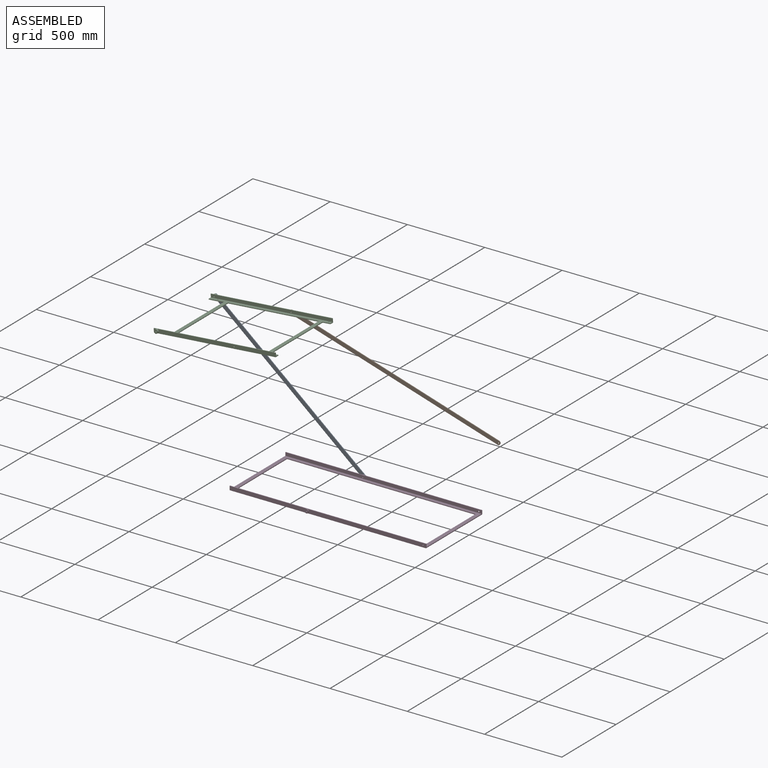
[diagram: assembled view]
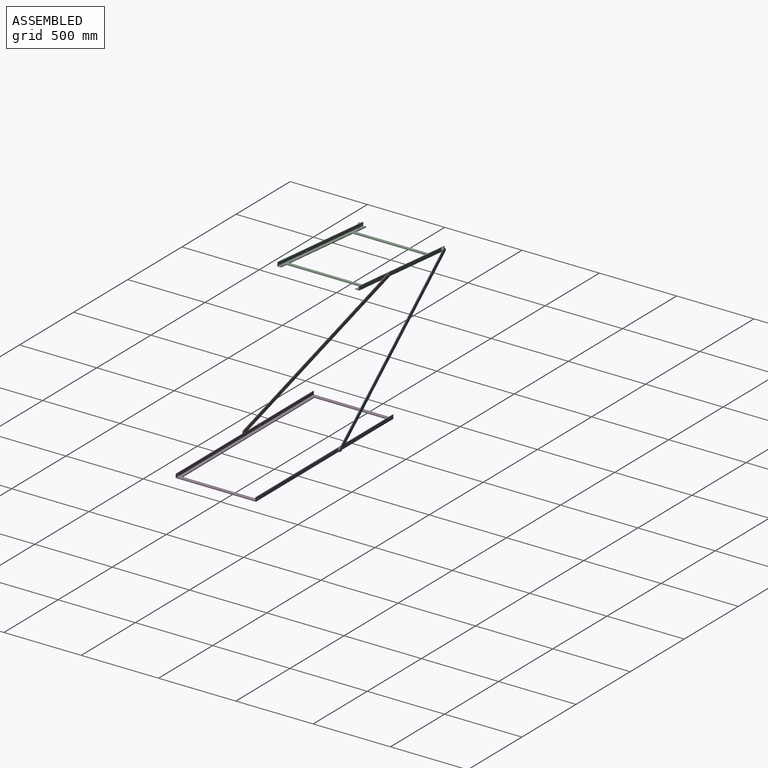
[diagram: assembled view, second angle]
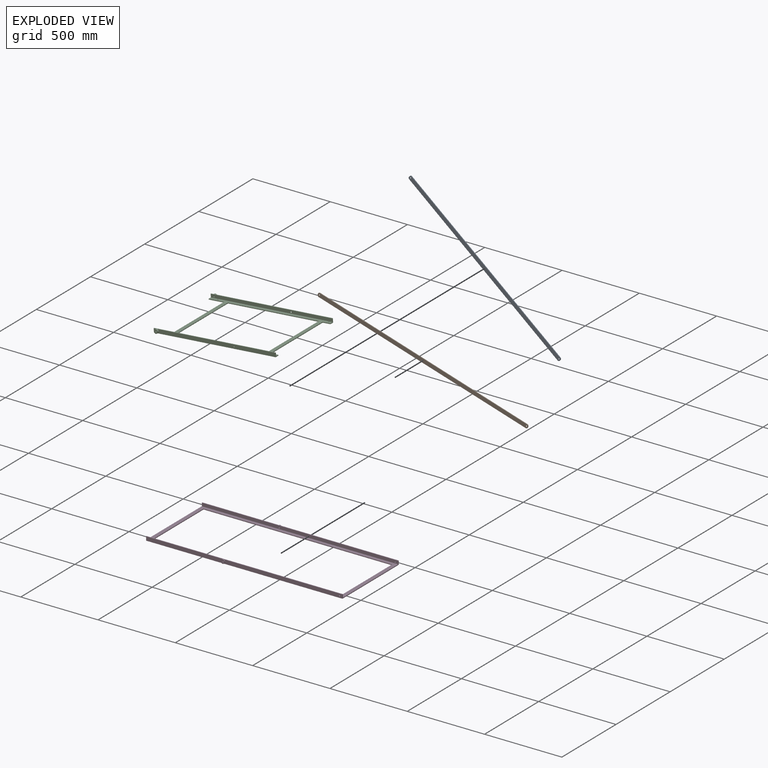
[diagram: exploded view]
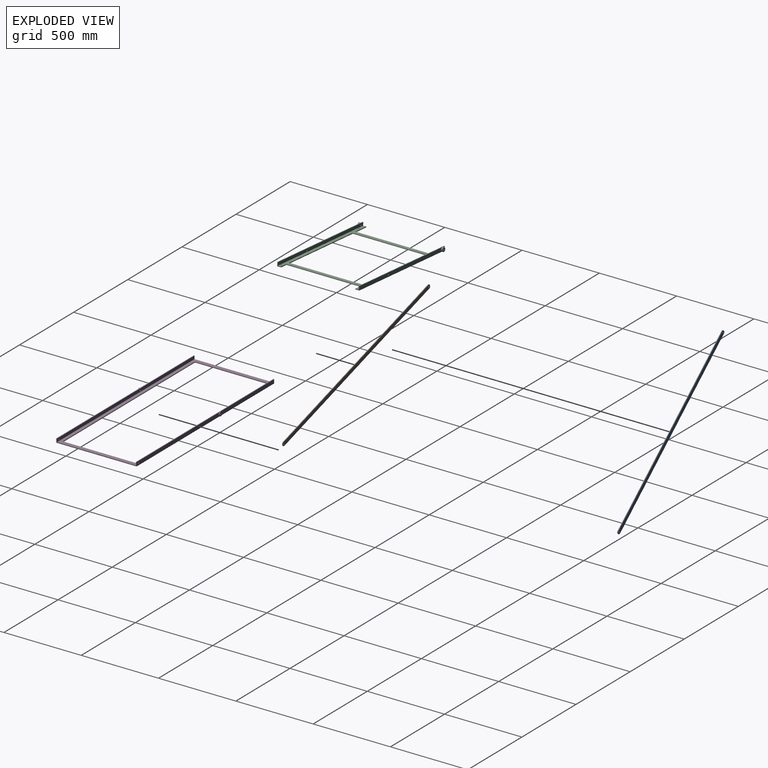
[diagram: exploded view, second angle]
ASSEMBLY  parts=4 mates=3
PART A: 12 faces, bbox 4.8x25.4x1270 mm
  f0: plane 5.4x4.76mm, normal (0,0,1), area 25.7mm2, adj f1,f9,f10,f11
  f1: cylinder r=10mm len=10mm, axis (-1,0,0), area 74.8mm2, adj f0,f2,f10,f11
  f2: plane 1250x4.76mm, normal (0,-1,0), area 5953.1mm2, adj f1,f3,f10,f11
  f3: cylinder r=10mm len=10mm, axis (-1,0,0), area 74.8mm2, adj f2,f4,f10,f11
  f4: plane 5.4x4.76mm, normal (0,0,-1), area 25.7mm2, adj f3,f5,f10,f11
  f5: cylinder r=10mm len=10mm, axis (-1,0,0), area 74.8mm2, adj f4,f6,f10,f11
  f6: plane 1250x4.76mm, normal (0,1,0), area 5953.1mm2, adj f5,f9,f10,f11
  f7: cylinder r=4mm len=8mm, axis (-1,0,0), area 119.7mm2, adj f10,f11
  f8: cylinder r=4mm len=8mm, axis (-1,0,0), area 119.7mm2, adj f10,f11
  f9: cylinder r=10mm len=10mm, axis (-1,0,0), area 74.8mm2, adj f0,f6,f10,f11
  f10: plane 1270x25.4mm, normal (1,0,0), area 32071.6mm2, adj f0,f1,f2,f3,f4,f5,f6,f7
  f11: plane 1270x25.4mm, normal (-1,0,0), area 32071.6mm2, adj f0,f1,f2,f3,f4,f5,f6,f7
PART B: 12 faces, bbox 25.4x4.8x1420 mm
  f0: plane 5.4x4.76mm, normal (0,0,1), area 25.7mm2, adj f1,f9,f10,f11
  f1: cylinder r=10mm len=10mm, axis (0,1,0), area 74.8mm2, adj f0,f2,f10,f11
  f2: plane 1400x4.76mm, normal (-1,0,0), area 6667.5mm2, adj f1,f3,f10,f11
  f3: cylinder r=10mm len=10mm, axis (0,1,0), area 74.8mm2, adj f2,f4,f10,f11
  f4: plane 5.4x4.76mm, normal (0,0,-1), area 25.7mm2, adj f3,f5,f10,f11
  f5: cylinder r=10mm len=10mm, axis (0,1,0), area 74.8mm2, adj f4,f6,f10,f11
  f6: plane 1400x4.76mm, normal (1,0,0), area 6667.5mm2, adj f5,f9,f10,f11
  f7: cylinder r=4mm len=8mm, axis (0,1,0), area 119.7mm2, adj f10,f11
  f8: cylinder r=4mm len=8mm, axis (0,1,0), area 119.7mm2, adj f10,f11
  f9: cylinder r=10mm len=10mm, axis (0,1,0), area 74.8mm2, adj f0,f6,f10,f11
  f10: plane 1420x25.4mm, normal (0,-1,0), area 35881.6mm2, adj f0,f1,f2,f3,f4,f5,f6,f7
  f11: plane 1420x25.4mm, normal (0,1,0), area 35881.6mm2, adj f0,f1,f2,f3,f4,f5,f6,f7
PART C: 36 faces, bbox 550.8x790x25.4 mm
  f0: plane 770x25.4mm, normal (-1,0,0), area 19254.4mm2, adj f6,f17,f21,f30,f34
  f1: plane 770x25.4mm, normal (1,0,0), area 19254.4mm2, adj f4,f6,f11,f28,f35
  f2: plane 100x4.76mm, normal (-1,0,0), area 476.3mm2, adj f6,f8,f10,f24
  f3: plane 50x4.76mm, normal (-1,0,0), area 238.1mm2, adj f6,f8,f11,f27
  f4: plane 790x4.76mm, normal (0,0,-1), area 3762.4mm2, adj f1,f5,f9,f10,f11
  f5: plane 25.4x20mm, normal (1,0,0), area 254.6mm2, adj f4,f6,f10,f28
  f6: plane 790x530.8mm, normal (0,0,1), area 64314.9mm2, adj f0,f1,f2,f3,f5,f7,f10,f11
  f7: plane 589.2x4.76mm, normal (-1,0,0), area 2806.1mm2, adj f6,f8,f25,f26
  f8: plane 790x521.28mm, normal (0,0,-1), area 56790.2mm2, adj f2,f3,f7,f9,f10,f11,f12,f13
  f9: plane 790x20.64mm, normal (-1,0,0), area 16203.1mm2, adj f4,f8,f10,f11,f33,f35
  f10: plane 25.4x25.4mm, normal (0,-1,0), area 219.3mm2, adj f2,f4,f5,f6,f8,f9
  f11: plane 25.4x25.4mm, normal (0,1,0), area 219.3mm2, adj f1,f3,f4,f6,f8,f9
  f12: cylinder r=4mm len=8mm, axis (0,0,1), area 119.7mm2, adj f6,f8
  f13: cylinder r=4mm len=8mm, axis (0,0,1), area 119.7mm2, adj f6,f8
  f14: plane 589.2x4.76mm, normal (1,0,0), area 2806.1mm2, adj f6,f8,f25,f26
  f15: plane 50x4.76mm, normal (1,0,0), area 238.1mm2, adj f6,f8,f21,f27
  f16: plane 25.4x20mm, normal (-1,0,0), area 254.6mm2, adj f6,f17,f20,f30
  f17: plane 790x4.76mm, normal (0,0,-1), area 3762.4mm2, adj f0,f16,f18,f20,f21
  f18: plane 790x20.64mm, normal (1,0,0), area 16203.1mm2, adj f8,f17,f20,f21,f32,f34
  f19: plane 100x4.76mm, normal (1,0,0), area 476.3mm2, adj f6,f8,f20,f24
  f20: plane 25.4x25.4mm, normal (0,-1,0), area 219.3mm2, adj f6,f8,f16,f17,f18,f19
  f21: plane 25.4x25.4mm, normal (0,1,0), area 219.3mm2, adj f0,f6,f8,f15,f17,f18
  f22: cylinder r=4mm len=8mm, axis (0,0,1), area 119.7mm2, adj f6,f8
  f23: cylinder r=4mm len=8mm, axis (0,0,1), area 119.7mm2, adj f6,f8
  f24: plane 480x4.76mm, normal (0,-1,0), area 2286mm2, adj f2,f6,f8,f19
  f25: plane 480x4.76mm, normal (0,1,0), area 2286mm2, adj f6,f7,f8,f14
  f26: plane 480x4.76mm, normal (0,-1,0), area 2286mm2, adj f6,f7,f8,f14
  f27: plane 480x4.76mm, normal (0,1,0), area 2286mm2, adj f3,f6,f8,f15
  f28: cylinder r=12.7mm len=25.4mm, axis (-1,0,0), area 798mm2, adj f1,f5,f29
  f29: plane 25.4x25.4mm, normal (1,0,0), area 456.4mm2, adj f28,f33
  f30: cylinder r=12.7mm len=25.4mm, axis (1,0,0), area 798mm2, adj f0,f16,f31
  f31: plane 25.4x25.4mm, normal (-1,0,0), area 456.4mm2, adj f30,f32
  f32: cylinder r=4mm len=14.76mm, axis (-1,0,0), area 371mm2, adj f18,f31
  f33: cylinder r=4mm len=14.76mm, axis (-1,0,0), area 371mm2, adj f9,f29
  f34: cylinder r=4mm len=8mm, axis (1,0,0), area 119.7mm2, adj f0,f18
  f35: cylinder r=4mm len=8mm, axis (1,0,0), area 119.7mm2, adj f1,f9
PART D: 30 faces, bbox 1270x529.5x25.4 mm
  f0: plane 1270x510mm, normal (0,0,1), area 76221.1mm2, adj f1,f4,f5,f9,f10,f11,f13,f14
  f1: plane 500x20.64mm, normal (0,1,0), area 10098.3mm2, adj f0,f11,f15,f27
  f2: plane 500x25.4mm, normal (0,-1,0), area 12446.6mm2, adj f6,f11,f15,f25
  f3: plane 770x25.4mm, normal (0,1,0), area 19254.4mm2, adj f6,f8,f10,f12,f22
  f4: plane 770x20.64mm, normal (0,-1,0), area 15620.1mm2, adj f0,f8,f10,f12,f21
  f5: plane 1219.2x4.76mm, normal (0,-1,0), area 5806.4mm2, adj f0,f6,f18,f19
  f6: plane 1270x519.53mm, normal (0,0,-1), area 88327.2mm2, adj f2,f3,f5,f7,f10,f11,f13,f16
  f7: plane 500x25.4mm, normal (0,1,0), area 12446.6mm2, adj f6,f8,f11,f22
  f8: plane 1270x4.76mm, normal (0,0,1), area 6048.4mm2, adj f3,f4,f7,f9,f10,f11
  f9: plane 500x20.64mm, normal (0,-1,0), area 10098.3mm2, adj f0,f8,f11,f21
  f10: plane 519.53x25.4mm, normal (1,0,0), area 2670.8mm2, adj f0,f3,f4,f6,f8,f14,f15,f16
  f11: plane 519.53x25.4mm, normal (-1,0,0), area 2670.8mm2, adj f0,f1,f2,f6,f7,f8,f9,f15
  f12: cylinder r=4mm len=8mm, axis (0,1,0), area 119.7mm2, adj f3,f4
  f13: plane 1219.2x4.76mm, normal (0,1,0), area 5806.4mm2, adj f0,f6,f18,f19
  f14: plane 770x20.64mm, normal (0,1,0), area 15620.1mm2, adj f0,f10,f15,f17,f27
  f15: plane 1270x4.76mm, normal (0,0,1), area 6048.4mm2, adj f1,f2,f10,f11,f14,f16
  f16: plane 770x25.4mm, normal (0,-1,0), area 19254.4mm2, adj f6,f10,f15,f17,f25
  f17: cylinder r=4mm len=8mm, axis (0,1,0), area 119.7mm2, adj f14,f16
  f18: plane 468.73x4.76mm, normal (1,0,0), area 2232.3mm2, adj f0,f5,f6,f13
  f19: plane 468.73x4.76mm, normal (-1,0,0), area 2232.3mm2, adj f0,f5,f6,f13
  f20: plane 25.4x20.64mm, normal (0,-1,0), area 390.7mm2, adj f0,f21,f29
  f21: cylinder r=12.7mm len=25.4mm, axis (0,1,0), area 13.5mm2, adj f0,f4,f9,f20
  f22: cylinder r=12.7mm len=25.4mm, axis (0,1,0), area 399mm2, adj f3,f7,f23
  f23: plane 25.4x25.4mm, normal (0,1,0), area 456.4mm2, adj f22,f29
  f24: plane 25.4x25.4mm, normal (0,-1,0), area 456.4mm2, adj f25,f26
  f25: cylinder r=12.7mm len=25.4mm, axis (0,1,0), area 399mm2, adj f2,f16,f24
  f26: cylinder r=4mm len=10mm, axis (0,1,0), area 251.3mm2, adj f24,f28
  f27: cylinder r=12.7mm len=25.4mm, axis (0,1,0), area 13.5mm2, adj f0,f1,f14,f28
  f28: plane 25.4x20.64mm, normal (0,1,0), area 390.7mm2, adj f0,f26,f27
  f29: cylinder r=4mm len=10mm, axis (0,1,0), area 251.3mm2, adj f20,f23
PLACE A rot(axis=(-0.39,-0.39,0.83),100.3deg) t=(-800.7,199.07,463.38)mm
PLACE B rot(axis=(0,-1,0),73deg) t=(-112.48,193.83,702.03)mm
PLACE C rot(axis=(0.71,0.71,0.03),176.6deg) t=(-514.09,-76.33,941.45)mm
PLACE D t=(-186.09,-65.69,49.92)mm fixed
MATE revolute D.f21 <-> A.f8  axis (0,1,0) through (-321.09,199.07,62.62)mm
MATE revolute C.f28 <-> A.f7  axis (0,1,0) through (-1280.3,199.07,864.13)mm
MATE revolute C.f34 <-> B.f7  axis (0,1,0) through (-782.07,189.07,906.12)mm
